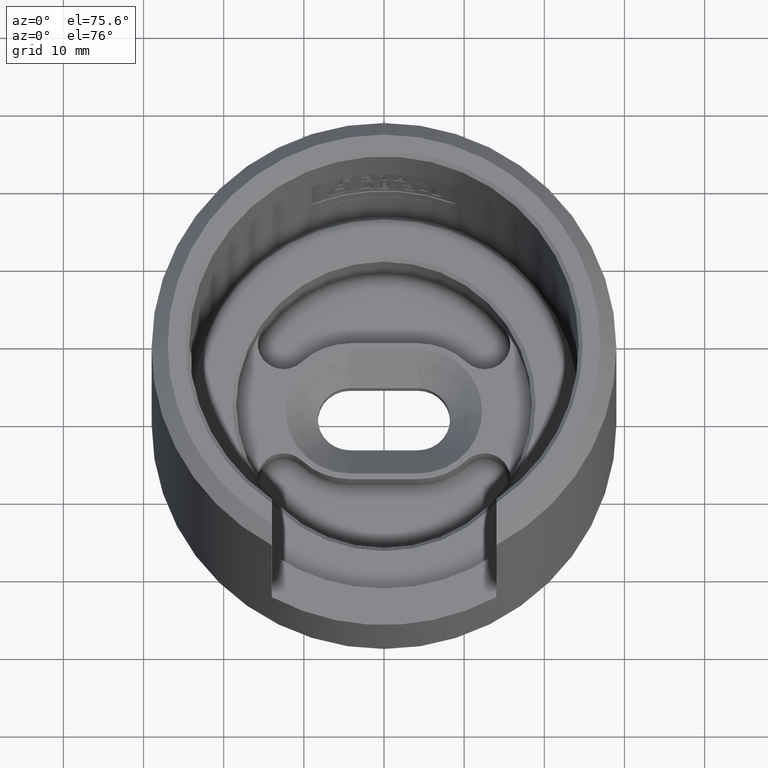
[diagram: clean part render]
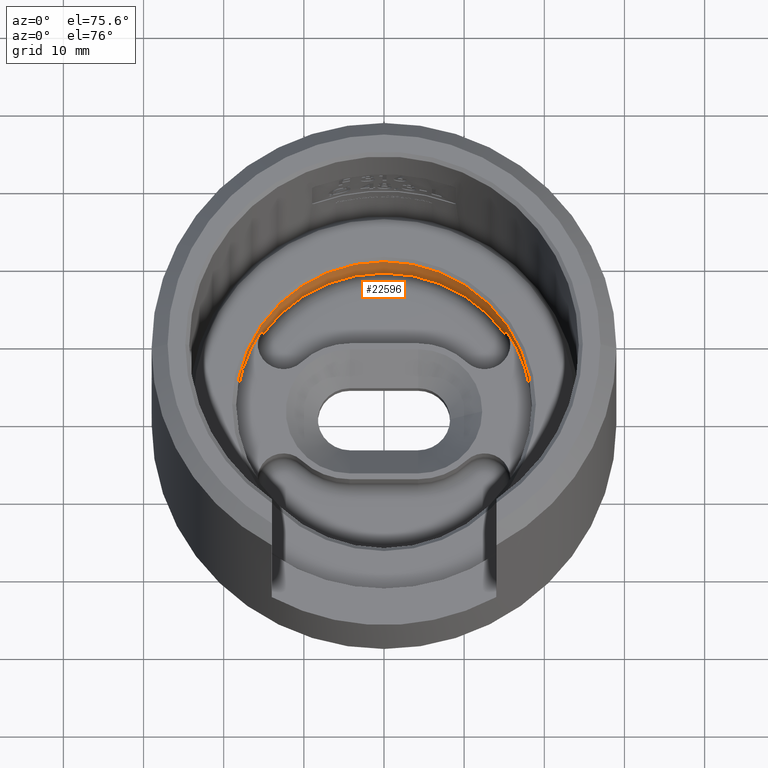
[diagram: same view with one face highlighted and labeled with its STEP entity id]
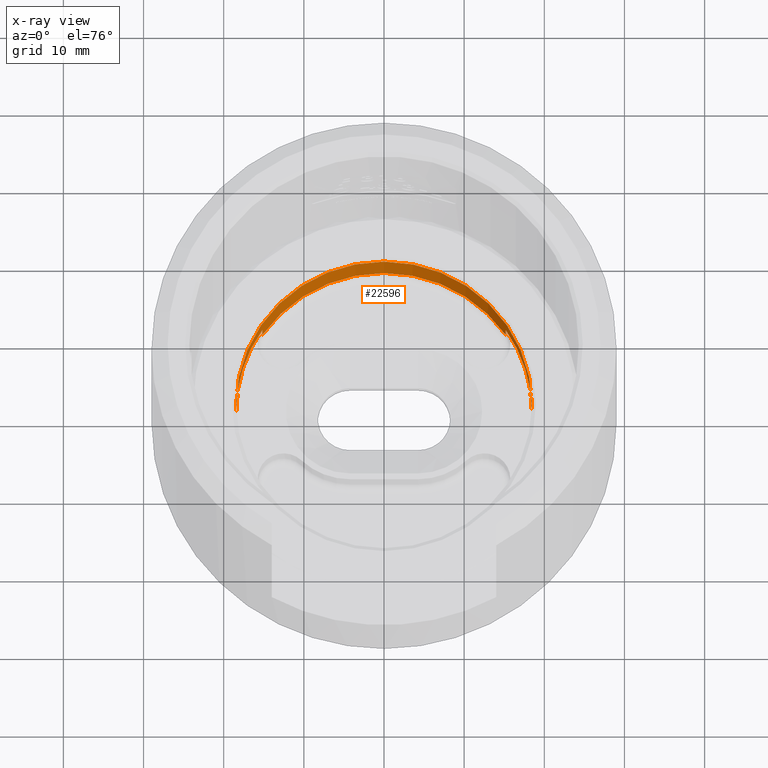
[diagram: x-ray of the same camera — body ghosted, the highlighted face saturated]
A machine part, auxiliary view. The second image highlights one B-rep face of the part: STEP entity #22596.
The next image is the same camera in x-ray: the body ghosted, the highlighted face saturated — about 0% of this face is hidden behind the body in this view.
In plain terms, the highlighted cylindrical surface (partial cylindrical patch) has radius 18.45 mm, axis along (0, 0, 1).
Its self-contained STEP definition (entity closure, byte-faithful):
#237 = AXIS2_PLACEMENT_3D ( 'NONE', #1539, #3694, #5646 ) ;
#362 = VECTOR ( 'NONE', #15759, 1000.000000000000000 ) ;
#972 = ORIENTED_EDGE ( 'NONE', *, *, #21420, .F. ) ;
#1208 = FACE_OUTER_BOUND ( 'NONE', #6733, .T. ) ;
#1539 = CARTESIAN_POINT ( 'NONE',  ( 0.0000000000000000000, 0.0000000000000000000, 1.300000000000003400 ) ) ;
#2325 = EDGE_CURVE ( 'NONE', #4603, #12715, #12754, .T. ) ;
#2813 = CARTESIAN_POINT ( 'NONE',  ( 15.18941577349957200, 10.47302002575008500, -2.199999999999996600 ) ) ;
#3100 = ORIENTED_EDGE ( 'NONE', *, *, #16431, .T. ) ;
#3694 = DIRECTION ( 'NONE',  ( -0.0000000000000000000, -0.0000000000000000000, 1.000000000000000000 ) ) ;
#4338 = DIRECTION ( 'NONE',  ( 1.000000000000000000, 0.0000000000000000000, 0.0000000000000000000 ) ) ;
#4361 = DIRECTION ( 'NONE',  ( -0.0000000000000000000, -0.0000000000000000000, 1.000000000000000000 ) ) ;
#4378 = ORIENTED_EDGE ( 'NONE', *, *, #2325, .F. ) ;
#4602 = LINE ( 'NONE', #14711, #26722 ) ;
#4603 = VERTEX_POINT ( 'NONE', #22283 ) ;
#5308 = CARTESIAN_POINT ( 'NONE',  ( 0.0000000000000000000, 0.0000000000000000000, 4.499999999999985800 ) ) ;
#5646 = DIRECTION ( 'NONE',  ( 1.000000000000000000, 0.0000000000000000000, 0.0000000000000000000 ) ) ;
#6032 = CARTESIAN_POINT ( 'NONE',  ( 18.44999999999999900, 0.0000000000000000000, 4.499999999999985800 ) ) ;
#6733 = EDGE_LOOP ( 'NONE', ( #972, #12177, #4378, #3100, #17455, #16469, #19185, #18654 ) ) ;
#7176 = VERTEX_POINT ( 'NONE', #26259 ) ;
#7871 = VERTEX_POINT ( 'NONE', #26252 ) ;
#8246 = CIRCLE ( 'NONE', #12057, 18.44999999999999900 ) ;
#8333 = LINE ( 'NONE', #21016, #10653 ) ;
#8566 = DIRECTION ( 'NONE',  ( 0.0000000000000000000, 0.0000000000000000000, 1.000000000000000000 ) ) ;
#8616 = VECTOR ( 'NONE', #13872, 1000.000000000000000 ) ;
#8617 = AXIS2_PLACEMENT_3D ( 'NONE', #22493, #13792, #15945 ) ;
#8655 = CARTESIAN_POINT ( 'NONE',  ( 0.0000000000000000000, 0.0000000000000000000, 1.300000000000003400 ) ) ;
#9201 = VERTEX_POINT ( 'NONE', #21640 ) ;
#9284 = VERTEX_POINT ( 'NONE', #26054 ) ;
#9708 = DIRECTION ( 'NONE',  ( 1.000000000000000000, 0.0000000000000000000, 0.0000000000000000000 ) ) ;
#9989 = DIRECTION ( 'NONE',  ( 0.0000000000000000000, 0.0000000000000000000, 1.000000000000000000 ) ) ;
#10653 = VECTOR ( 'NONE', #27296, 1000.000000000000000 ) ;
#12057 = AXIS2_PLACEMENT_3D ( 'NONE', #8655, #8566, #4338 ) ;
#12177 = ORIENTED_EDGE ( 'NONE', *, *, #15026, .F. ) ;
#12715 = VERTEX_POINT ( 'NONE', #26960 ) ;
#12754 = LINE ( 'NONE', #24359, #362 ) ;
#13792 = DIRECTION ( 'NONE',  ( -0.0000000000000000000, -0.0000000000000000000, -1.000000000000000000 ) ) ;
#13872 = DIRECTION ( 'NONE',  ( -0.0000000000000000000, -0.0000000000000000000, 1.000000000000000000 ) ) ;
#14142 = DIRECTION ( 'NONE',  ( -1.000000000000000000, 0.0000000000000000000, 0.0000000000000000000 ) ) ;
#14711 = CARTESIAN_POINT ( 'NONE',  ( -18.44999999999999900, 2.259473344426866300E-015, 1.300000000000003400 ) ) ;
#15005 = CIRCLE ( 'NONE', #27427, 18.44999999999999900 ) ;
#15026 = EDGE_CURVE ( 'NONE', #12715, #7176, #8246, .T. ) ;
#15759 = DIRECTION ( 'NONE',  ( -0.0000000000000000000, -0.0000000000000000000, 1.000000000000000000 ) ) ;
#15945 = DIRECTION ( 'NONE',  ( 1.000000000000000000, 8.881784197001252300E-016, 0.0000000000000000000 ) ) ;
#16383 = CIRCLE ( 'NONE', #8617, 18.44999999999999900 ) ;
#16431 = EDGE_CURVE ( 'NONE', #4603, #7871, #16383, .T. ) ;
#16469 = ORIENTED_EDGE ( 'NONE', *, *, #26017, .F. ) ;
#17455 = ORIENTED_EDGE ( 'NONE', *, *, #21664, .T. ) ;
#17718 = CARTESIAN_POINT ( 'NONE',  ( 15.18941577349957200, 10.47302002575008500, 1.300000000000003400 ) ) ;
#18346 = LINE ( 'NONE', #2813, #8616 ) ;
#18654 = ORIENTED_EDGE ( 'NONE', *, *, #26100, .T. ) ;
#19185 = ORIENTED_EDGE ( 'NONE', *, *, #24898, .T. ) ;
#20770 = AXIS2_PLACEMENT_3D ( 'NONE', #22651, #24618, #9708 ) ;
#21016 = CARTESIAN_POINT ( 'NONE',  ( 18.44999999999999900, 0.0000000000000000000, 1.300000000000003400 ) ) ;
#21420 = EDGE_CURVE ( 'NONE', #7176, #9201, #4602, .T. ) ;
#21640 = CARTESIAN_POINT ( 'NONE',  ( -18.44999999999999900, 2.259473344426866300E-015, 4.499999999999985800 ) ) ;
#21664 = EDGE_CURVE ( 'NONE', #7871, #25057, #18346, .T. ) ;
#22283 = CARTESIAN_POINT ( 'NONE',  ( -15.18941577349961800, 10.47302002575001700, -1.199999999999996600 ) ) ;
#22493 = CARTESIAN_POINT ( 'NONE',  ( 0.0000000000000000000, 0.0000000000000000000, -1.199999999999996600 ) ) ;
#22596 = ADVANCED_FACE ( 'NONE', ( #1208 ), #27356, .F. ) ;
#22651 = CARTESIAN_POINT ( 'NONE',  ( 0.0000000000000000000, 0.0000000000000000000, 1.300000000000003400 ) ) ;
#22728 = VERTEX_POINT ( 'NONE', #6032 ) ;
#24359 = CARTESIAN_POINT ( 'NONE',  ( -15.18941577349961800, 10.47302002575001700, -2.199999999999996600 ) ) ;
#24618 = DIRECTION ( 'NONE',  ( 0.0000000000000000000, 0.0000000000000000000, 1.000000000000000000 ) ) ;
#24898 = EDGE_CURVE ( 'NONE', #9284, #22728, #8333, .T. ) ;
#25057 = VERTEX_POINT ( 'NONE', #17718 ) ;
#26017 = EDGE_CURVE ( 'NONE', #9284, #25057, #26719, .T. ) ;
#26054 = CARTESIAN_POINT ( 'NONE',  ( 18.44999999999999900, 0.0000000000000000000, 1.300000000000003400 ) ) ;
#26100 = EDGE_CURVE ( 'NONE', #22728, #9201, #15005, .T. ) ;
#26252 = CARTESIAN_POINT ( 'NONE',  ( 15.18941577349957200, 10.47302002575008500, -1.199999999999996600 ) ) ;
#26259 = CARTESIAN_POINT ( 'NONE',  ( -18.44999999999999900, 2.259473344426866300E-015, 1.300000000000003400 ) ) ;
#26719 = CIRCLE ( 'NONE', #20770, 18.44999999999999900 ) ;
#26722 = VECTOR ( 'NONE', #4361, 1000.000000000000000 ) ;
#26960 = CARTESIAN_POINT ( 'NONE',  ( -15.18941577349961800, 10.47302002575001700, 1.300000000000003400 ) ) ;
#27296 = DIRECTION ( 'NONE',  ( -0.0000000000000000000, -0.0000000000000000000, 1.000000000000000000 ) ) ;
#27356 = CYLINDRICAL_SURFACE ( 'NONE', #237, 18.44999999999999900 ) ;
#27427 = AXIS2_PLACEMENT_3D ( 'NONE', #5308, #9989, #14142 ) ;